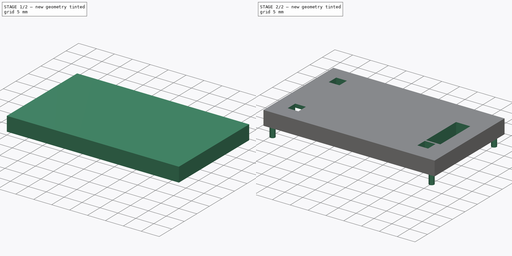
[diagram: build sequence overview — one tinted view per stage of 2, left to right]
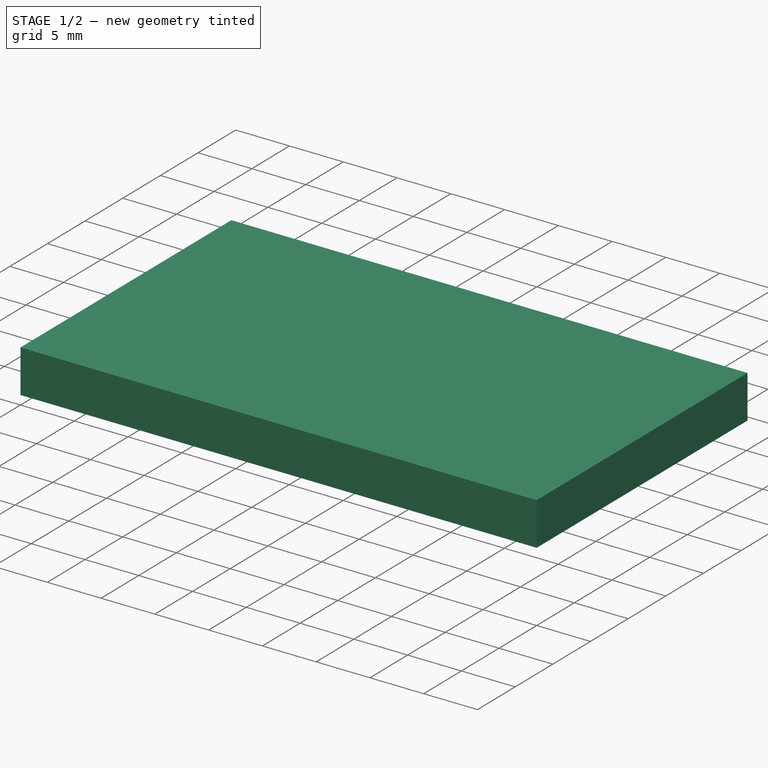
[diagram: stage 1 of 2 — iso view after this stage's code; geometry added in this stage tinted green]
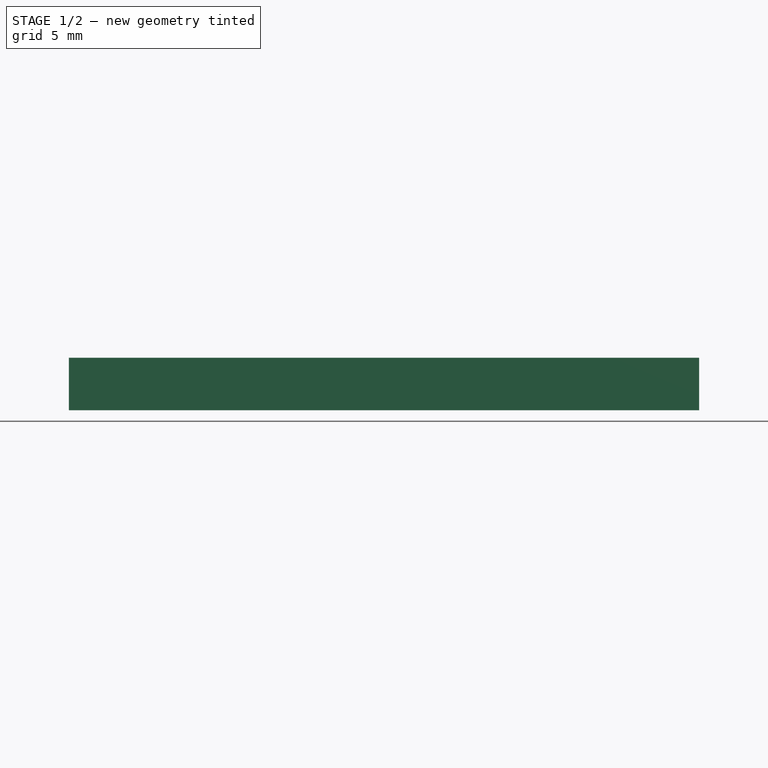
[diagram: stage 1 of 2 — front view after this stage's code; geometry added in this stage tinted green]
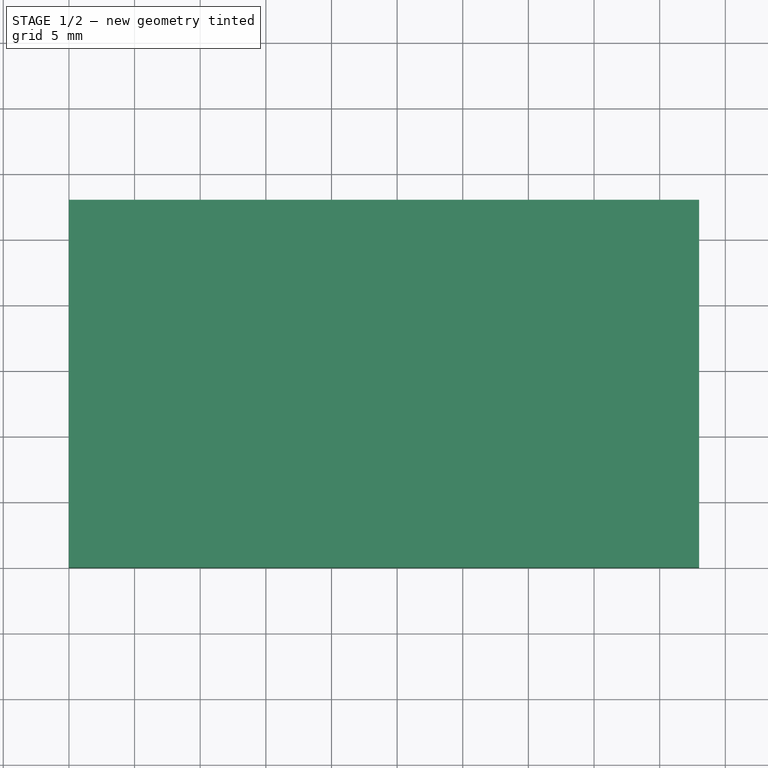
[diagram: stage 1 of 2 — top view after this stage's code; geometry added in this stage tinted green]
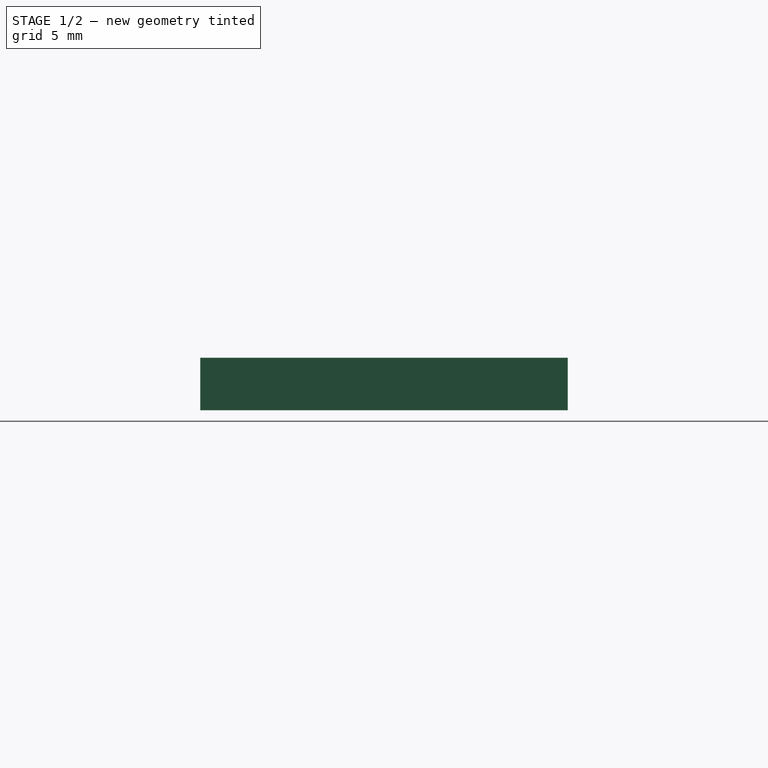
[diagram: stage 1 of 2 — right view after this stage's code; geometry added in this stage tinted green]
FCSTD DOCUMENT  (FreeCAD 0.16R6109 (Git))
Label: cover3
License: All rights reserved
LicenseURL: http://en.wikipedia.org/wiki/All_rights_reserved
objects: Sketcher::SketchObject×4, PartDesign::Pad×2, PartDesign::Pocket×2
note: 12 computed .brp shape members not serialized (recipe doc carries the construction recipe); baked Part::Feature solids carry a one-line shape summary decoded from their .brp

FEATURE [Sketcher::SketchObject] Sketch
  sketch-geometry (4):
    g0: LineSegment StartX=0 StartY=0 StartZ=0 EndX=48 EndY=0 EndZ=0
    g1: LineSegment StartX=48 StartY=0 StartZ=0 EndX=48 EndY=28 EndZ=0
    g2: LineSegment StartX=48 StartY=28 StartZ=0 EndX=0 EndY=28 EndZ=0
    g3: LineSegment StartX=0 StartY=28 StartZ=0 EndX=0 EndY=0 EndZ=0
  constraints (11):
    c: Coincident(g0,g1)
    c: Coincident(g1,g2)
    c: Coincident(g2,g3)
    c: Coincident(g3,g0)
    c: Horizontal(g0)
    c: Horizontal(g2)
    c: Vertical(g1)
    c: Vertical(g3)
    c: Coincident(g0,g-1)
    c: DistanceX(g0) = 48
    c: DistanceY(g2) = 28
FEATURE [PartDesign::Pad] Pad
  Length = 4
  Length2 = 100
  Sketch = -> Sketch
  Type = 0
FEATURE [Sketcher::SketchObject] Sketch001
  Placement = pos=(0,0,0) rot=(0.57735,-0.57735,-0.57735;2.0944rad)
  Support = -> Pad [Face4]
  sketch-geometry (4):
    g0: LineSegment StartX=-21 StartY=3 StartZ=0 EndX=-7 EndY=3 EndZ=0
    g1: LineSegment StartX=-7 StartY=3 StartZ=0 EndX=-7 EndY=0 EndZ=0
    g2: LineSegment StartX=-7 StartY=0 StartZ=0 EndX=-21 EndY=0 EndZ=0
    g3: LineSegment StartX=-21 StartY=0 StartZ=0 EndX=-21 EndY=3 EndZ=0
  constraints (12):
    c: Coincident(g0,g1)
    c: Coincident(g1,g2)
    c: Coincident(g2,g3)
    c: Coincident(g3,g0)
    c: Horizontal(g0)
    c: Horizontal(g2)
    c: Vertical(g1)
    c: Vertical(g3)
    c: DistanceY(g-1,g1) = 0
    c: DistanceY(g0) = 3
    c: DistanceX(g0) = 14
    c: DistanceX(g0) = -7
FEATURE [PartDesign::Pocket] Pocket
  Length = 15
  Sketch = -> Sketch001
  Type = 0
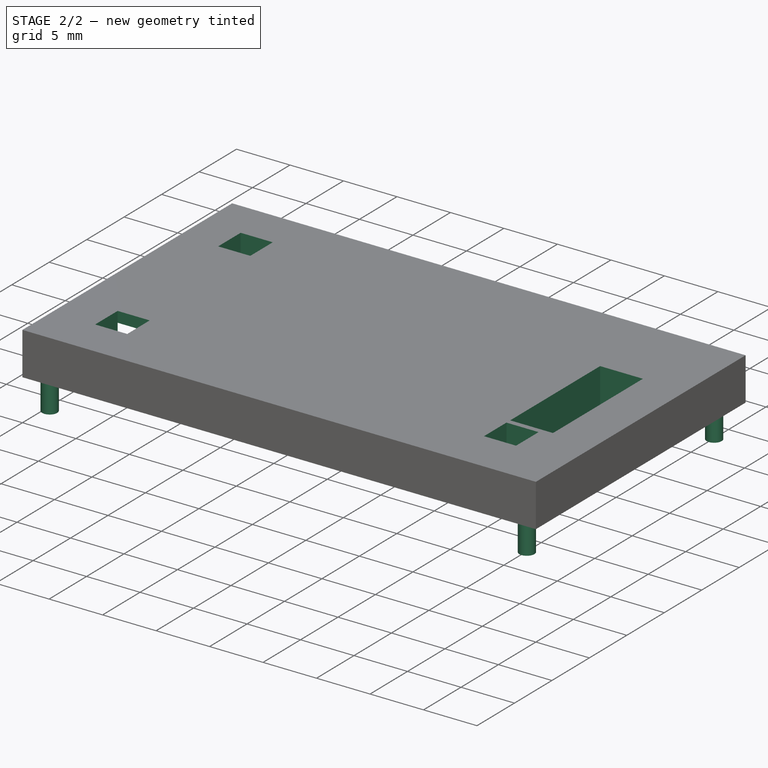
[diagram: stage 2 of 2 — iso view after this stage's code; geometry added in this stage tinted green]
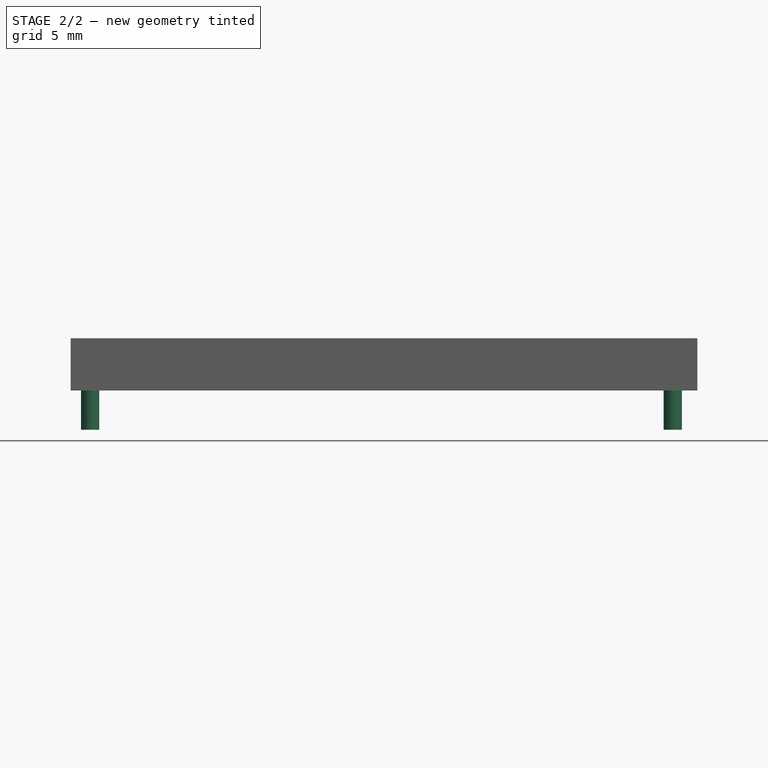
[diagram: stage 2 of 2 — front view after this stage's code; geometry added in this stage tinted green]
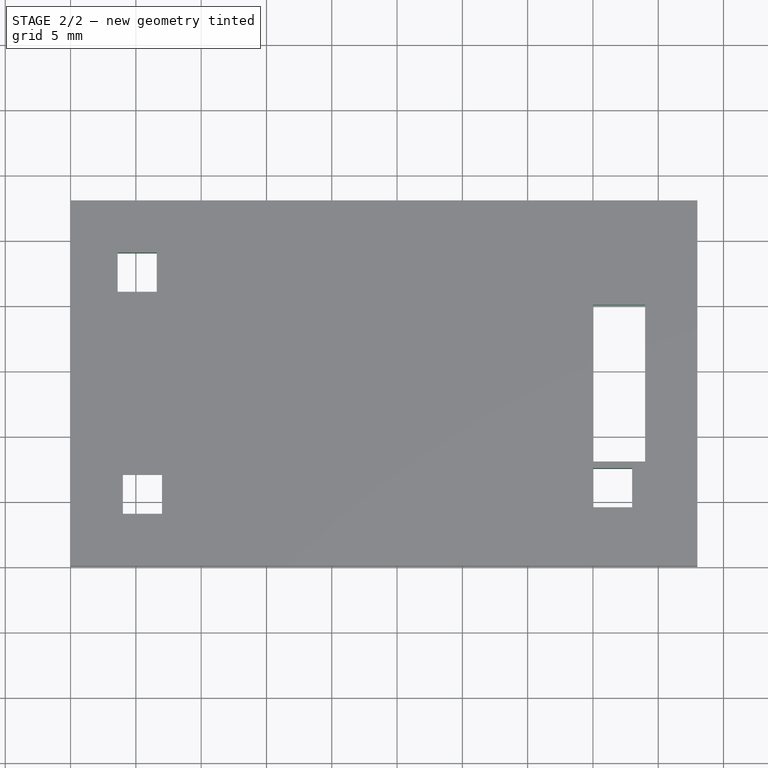
[diagram: stage 2 of 2 — top view after this stage's code; geometry added in this stage tinted green]
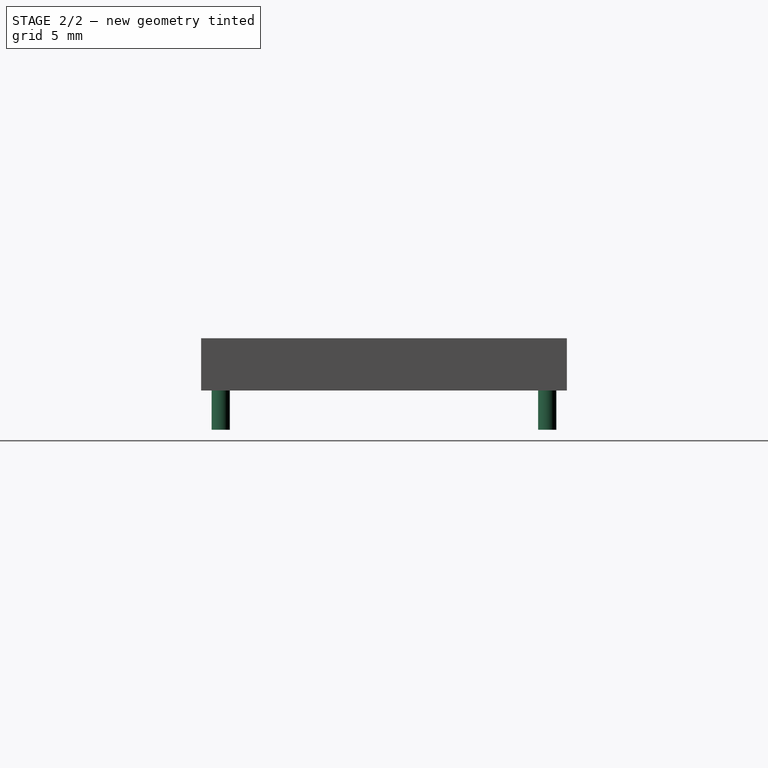
[diagram: stage 2 of 2 — right view after this stage's code; geometry added in this stage tinted green]
FEATURE [Sketcher::SketchObject] Sketch002
  Placement = pos=(0,0,4) rot=(0,0,1;0rad)
  Support = -> Pocket [Face5]
  sketch-geometry (16):
    g0: LineSegment StartX=40 StartY=20 StartZ=0 EndX=44 EndY=20 EndZ=0
    g1: LineSegment StartX=44 StartY=20 StartZ=0 EndX=44 EndY=8 EndZ=0
    g2: LineSegment StartX=44 StartY=8 StartZ=0 EndX=40 EndY=8 EndZ=0
    g3: LineSegment StartX=40 StartY=8 StartZ=0 EndX=40 EndY=20 EndZ=0
    g4: LineSegment StartX=40 StartY=7.5 StartZ=0 EndX=43 EndY=7.5 EndZ=0
    g5: LineSegment StartX=43 StartY=7.5 StartZ=0 EndX=43 EndY=4.5 EndZ=0
    g6: LineSegment StartX=43 StartY=4.5 StartZ=0 EndX=40 EndY=4.5 EndZ=0
    g7: LineSegment StartX=40 StartY=4.5 StartZ=0 EndX=40 EndY=7.5 EndZ=0
    g8: LineSegment StartX=4 StartY=4 StartZ=0 EndX=7 EndY=4 EndZ=0
    g9: LineSegment StartX=7 StartY=4 StartZ=0 EndX=7 EndY=7 EndZ=0
    g10: LineSegment StartX=7 StartY=7 StartZ=0 EndX=4 EndY=7 EndZ=0
    g11: LineSegment StartX=4 StartY=7 StartZ=0 EndX=4 EndY=4 EndZ=0
    g12: LineSegment StartX=3.59874 StartY=24 StartZ=0 EndX=6.59874 EndY=24 EndZ=0
    g13: LineSegment StartX=6.59874 StartY=24 StartZ=0 EndX=6.59874 EndY=21 EndZ=0
    g14: LineSegment StartX=6.59874 StartY=21 StartZ=0 EndX=3.59874 EndY=21 EndZ=0
    g15: LineSegment StartX=3.59874 StartY=21 StartZ=0 EndX=3.59874 EndY=24 EndZ=0
  constraints (47):
    c: Coincident(g0,g1)
    c: Coincident(g1,g2)
    c: Coincident(g2,g3)
    c: Coincident(g3,g0)
    c: Horizontal(g0)
    c: Horizontal(g2)
    c: Vertical(g1)
    c: Vertical(g3)
    c: DistanceY(g1) = -12
    c: DistanceY(g2) = 8
    c: DistanceX(g1) = 44
    c: DistanceX(g0) = 4
    c: Coincident(g4,g5)
    c: Coincident(g5,g6)
    c: Coincident(g6,g7)
    c: Coincident(g7,g4)
    c: Horizontal(g4)
    c: Horizontal(g6)
    c: Vertical(g5)
    c: Vertical(g7)
    c: Equal(g5,g6)
    c: DistanceX(g4) = 3
    c: DistanceX(g6) = 40
    c: DistanceY(g6) = 4.5
    c: Coincident(g8,g9)
    c: Coincident(g9,g10)
    c: Coincident(g10,g11)
    c: Coincident(g11,g8)
    c: Horizontal(g8)
    c: Horizontal(g10)
    c: Vertical(g9)
    c: Vertical(g11)
    c: Equal(g8,g9)
    c: DistanceX(g10) = -3
    c: DistanceX(g8) = 4
    c: DistanceY(g8) = 4
    c: Coincident(g12,g13)
    c: Coincident(g13,g14)
    c: Coincident(g14,g15)
    c: Coincident(g15,g12)
    c: Horizontal(g12)
    c: Horizontal(g14)
    c: Vertical(g13)
    c: Vertical(g15)
    c: Equal(g13,g14)
    c: DistanceX(g14) = -3
    c: DistanceY(g14) = 21
FEATURE [PartDesign::Pocket] Pocket001
  Length = 5
  Sketch = -> Sketch002
  Type = 1
FEATURE [Sketcher::SketchObject] Sketch003
  Placement = pos=(0,0,0) rot=(1,0,0;3.14159rad)
  Support = -> Pocket001 [Face4]
  sketch-geometry (4):
    g0: Circle CenterX=1.5 CenterY=-1.5 CenterZ=0 NormalX=0 NormalY=0 NormalZ=1 Radius=0.7
    g1: Circle CenterX=1.5 CenterY=-26.5 CenterZ=0 NormalX=0 NormalY=0 NormalZ=1 Radius=0.7
    g2: Circle CenterX=46.1099 CenterY=-26.5 CenterZ=0 NormalX=0 NormalY=0 NormalZ=1 Radius=0.7
    g3: Circle CenterX=46.1099 CenterY=-1.5 CenterZ=0 NormalX=0 NormalY=0 NormalZ=1 Radius=0.7
  constraints (11):
    c: Equal(g0,g1)
    c: Equal(g1,g2)
    c: Equal(g2,g3)
    c: Radius(g0) = 0.7
    c: DistanceX(g0) = 1.5
    c: DistanceY(g0) = -1.5
    c: DistanceY(g1) = -26.5
    c: DistanceX(g1) = 1.5
    c: DistanceX(g3,g2) = 0
    c: DistanceY(g1,g2) = 0
    c: DistanceY(g3,g0) = 0
FEATURE [PartDesign::Pad] Pad001
  Length = 3
  Length2 = 100
  Sketch = -> Sketch003
  Type = 0
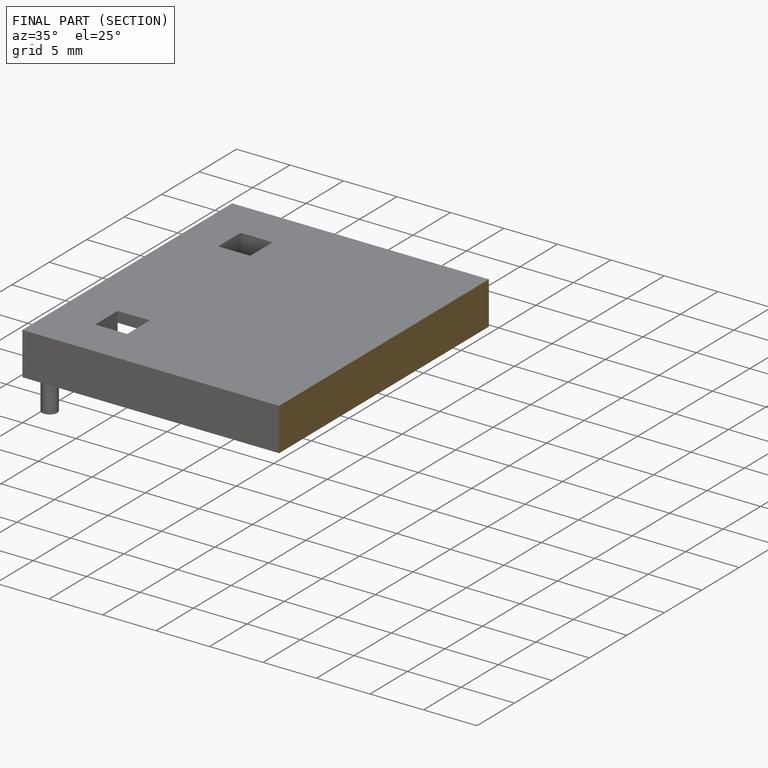
[diagram: finished part — half-section view (interior)]
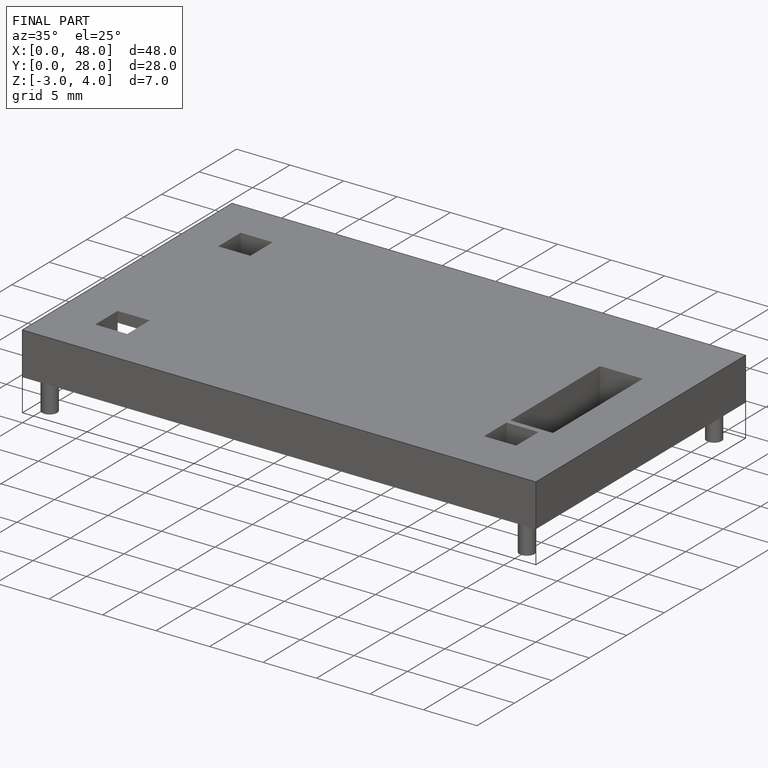
[diagram: finished part — iso view with bounding-box wireframe]
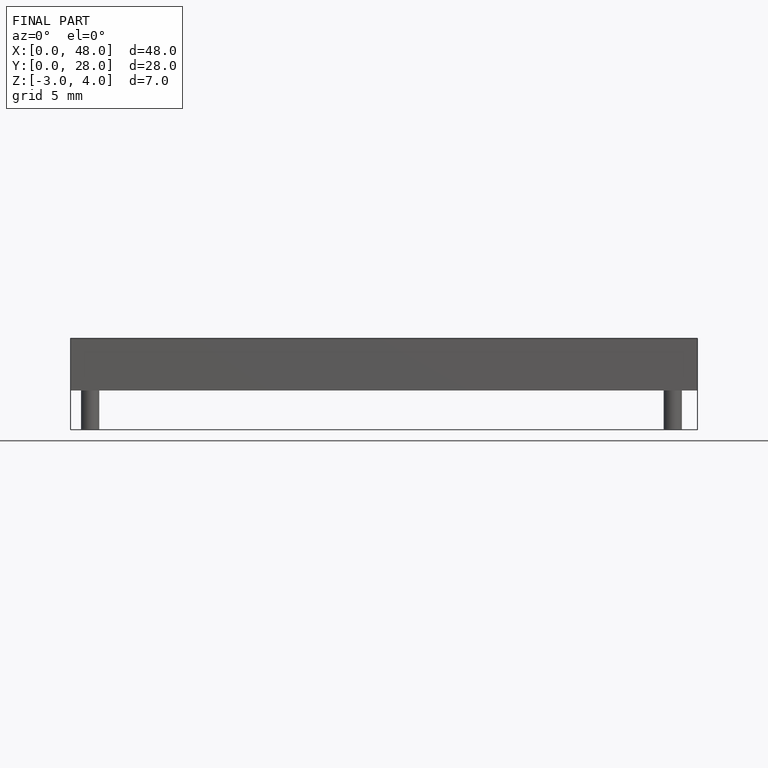
[diagram: finished part — front view with bounding-box wireframe]
